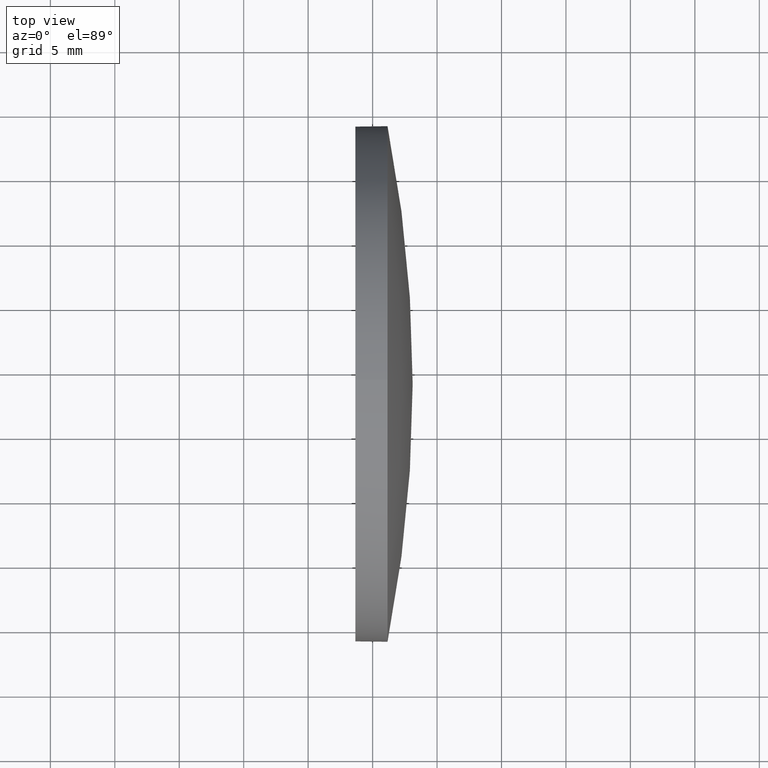
[diagram: clean part render]
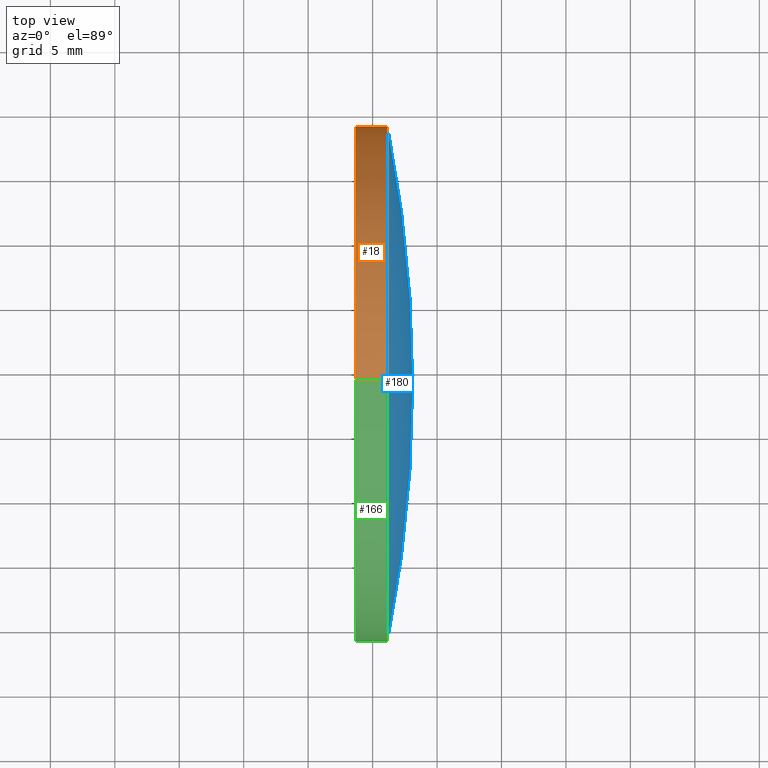
[diagram: same view with three faces highlighted in distinct colors, each labeled with its STEP entity id]
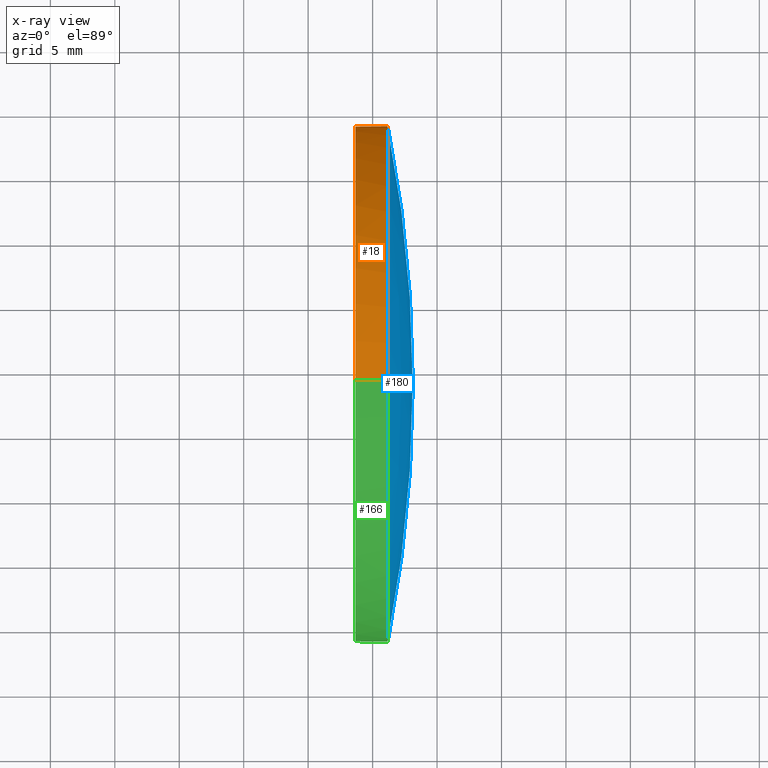
[diagram: x-ray of the same camera — body ghosted, the three highlighted faces saturated]
A machine part, top view with three faces highlighted in distinct colors.
The next image is the same camera in x-ray (body ghosted, the three faces saturated) — at least one of them is partly hidden behind the body in this view.
Their STEP definitions:

[orange] entity #18 — the highlighted cylindrical surface (partial cylindrical patch) has radius 20 mm, axis along (-1, -0, -0).
#2 = CARTESIAN_POINT ( 'NONE',  ( 858.6588966541114600, 303.9353003407363200, 19.99999999999996100 ) ) ;
#3 = EDGE_CURVE ( 'NONE', #119, #85, #176, .T. ) ;
#6 = CARTESIAN_POINT ( 'NONE',  ( 858.6588966541114600, 303.9353003407363200, 0.0000000000000000000 ) ) ;
#13 = AXIS2_PLACEMENT_3D ( 'NONE', #129, #131, #102 ) ;
#18 = ADVANCED_FACE ( 'NONE', ( #26 ), #168, .T. ) ;
#19 = VECTOR ( 'NONE', #137, 1000.000000000000000 ) ;
#21 = DIRECTION ( 'NONE',  ( -1.000000000000000000, -0.0000000000000000000, -0.0000000000000000000 ) ) ;
#23 = EDGE_CURVE ( 'NONE', #38, #67, #159, .T. ) ;
#26 = FACE_OUTER_BOUND ( 'NONE', #93, .T. ) ;
#28 = CIRCLE ( 'NONE', #112, 19.99999999999996100 ) ;
#30 = CARTESIAN_POINT ( 'NONE',  ( 849.1523993343382700, 303.9353003407363200, 0.0000000000000000000 ) ) ;
#38 = VERTEX_POINT ( 'NONE', #146 ) ;
#46 = ORIENTED_EDGE ( 'NONE', *, *, #76, .F. ) ;
#61 = DIRECTION ( 'NONE',  ( -1.000000000000000000, -0.0000000000000000000, -0.0000000000000000000 ) ) ;
#63 = DIRECTION ( 'NONE',  ( -1.000000000000000000, -0.0000000000000000000, -0.0000000000000000000 ) ) ;
#64 = CARTESIAN_POINT ( 'NONE',  ( 849.1523993343382700, 303.9353003407363200, 19.99999999999996100 ) ) ;
#67 = VERTEX_POINT ( 'NONE', #101 ) ;
#69 = LINE ( 'NONE', #64, #19 ) ;
#73 = VERTEX_POINT ( 'NONE', #2 ) ;
#76 = EDGE_CURVE ( 'NONE', #73, #67, #97, .T. ) ;
#80 = ORIENTED_EDGE ( 'NONE', *, *, #92, .F. ) ;
#85 = VERTEX_POINT ( 'NONE', #154 ) ;
#92 = EDGE_CURVE ( 'NONE', #119, #73, #69, .T. ) ;
#93 = EDGE_LOOP ( 'NONE', ( #142, #117, #46, #80, #127 ) ) ;
#96 = EDGE_CURVE ( 'NONE', #85, #38, #28, .T. ) ;
#97 = CIRCLE ( 'NONE', #121, 19.99999999999996100 ) ;
#101 = CARTESIAN_POINT ( 'NONE',  ( 858.6588966541114600, 303.9353003407363200, -19.99999999999996100 ) ) ;
#102 = DIRECTION ( 'NONE',  ( 0.0000000000000000000, 0.0000000000000000000, 1.000000000000000000 ) ) ;
#105 = CARTESIAN_POINT ( 'NONE',  ( 861.1588966541114600, 303.9353003407363200, 19.99999999999996100 ) ) ;
#106 = DIRECTION ( 'NONE',  ( 0.0000000000000000000, 0.0000000000000000000, 1.000000000000000000 ) ) ;
#112 = AXIS2_PLACEMENT_3D ( 'NONE', #132, #21, #164 ) ;
#115 = DIRECTION ( 'NONE',  ( -1.000000000000000000, -0.0000000000000000000, -0.0000000000000000000 ) ) ;
#117 = ORIENTED_EDGE ( 'NONE', *, *, #23, .T. ) ;
#119 = VERTEX_POINT ( 'NONE', #105 ) ;
#121 = AXIS2_PLACEMENT_3D ( 'NONE', #6, #63, #106 ) ;
#127 = ORIENTED_EDGE ( 'NONE', *, *, #3, .T. ) ;
#129 = CARTESIAN_POINT ( 'NONE',  ( 861.1588966541114600, 303.9353003407363200, 0.0000000000000000000 ) ) ;
#131 = DIRECTION ( 'NONE',  ( -1.000000000000000000, -0.0000000000000000000, -0.0000000000000000000 ) ) ;
#132 = CARTESIAN_POINT ( 'NONE',  ( 861.1588966541114600, 303.9353003407363200, 0.0000000000000000000 ) ) ;
#137 = DIRECTION ( 'NONE',  ( -1.000000000000000000, -0.0000000000000000000, -0.0000000000000000000 ) ) ;
#142 = ORIENTED_EDGE ( 'NONE', *, *, #96, .T. ) ;
#145 = DIRECTION ( 'NONE',  ( 0.0000000000000000000, 0.0000000000000000000, 1.000000000000000000 ) ) ;
#146 = CARTESIAN_POINT ( 'NONE',  ( 861.1588966541114600, 303.9353003407363200, -19.99999999999996100 ) ) ;
#149 = VECTOR ( 'NONE', #115, 1000.000000000000000 ) ;
#154 = CARTESIAN_POINT ( 'NONE',  ( 861.1588966541114600, 323.9353003407363200, 2.449293598294688800E-015 ) ) ;
#159 = LINE ( 'NONE', #160, #149 ) ;
#160 = CARTESIAN_POINT ( 'NONE',  ( 849.1523993343382700, 303.9353003407363200, -19.99999999999996100 ) ) ;
#164 = DIRECTION ( 'NONE',  ( 0.0000000000000000000, 0.0000000000000000000, 1.000000000000000000 ) ) ;
#168 = CYLINDRICAL_SURFACE ( 'NONE', #174, 19.99999999999996100 ) ;
#174 = AXIS2_PLACEMENT_3D ( 'NONE', #30, #61, #145 ) ;
#176 = CIRCLE ( 'NONE', #13, 19.99999999999996100 ) ;

[blue] entity #180 — the highlighted spherical surface has radius 103.539 mm.
#1 = EDGE_LOOP ( 'NONE', ( #103, #124, #113, #70 ) ) ;
#3 = EDGE_CURVE ( 'NONE', #119, #85, #176, .T. ) ;
#4 = VERTEX_POINT ( 'NONE', #48 ) ;
#13 = AXIS2_PLACEMENT_3D ( 'NONE', #129, #131, #102 ) ;
#15 = CIRCLE ( 'NONE', #111, 19.99999999999996100 ) ;
#17 = CARTESIAN_POINT ( 'NONE',  ( 759.5697940900090500, 303.9353003407364300, 0.0000000000000000000 ) ) ;
#32 = AXIS2_PLACEMENT_3D ( 'NONE', #90, #56, #36 ) ;
#36 = DIRECTION ( 'NONE',  ( -1.000000000000000000, 0.0000000000000000000, 0.0000000000000000000 ) ) ;
#37 = CIRCLE ( 'NONE', #32, 103.5391025641024800 ) ;
#48 = CARTESIAN_POINT ( 'NONE',  ( 861.1588966541114600, 283.9353003407364300, 0.0000000000000000000 ) ) ;
#53 = CARTESIAN_POINT ( 'NONE',  ( 863.1088966541115000, 303.9353003407364300, 0.0000000000000000000 ) ) ;
#54 = DIRECTION ( 'NONE',  ( 0.0000000000000000000, 0.0000000000000000000, 1.000000000000000000 ) ) ;
#55 = DIRECTION ( 'NONE',  ( 0.0000000000000000000, 0.0000000000000000000, 1.000000000000000000 ) ) ;
#56 = DIRECTION ( 'NONE',  ( 0.0000000000000000000, 0.0000000000000000000, -1.000000000000000000 ) ) ;
#65 = DIRECTION ( 'NONE',  ( 0.0000000000000000000, -1.000000000000000000, 0.0000000000000000000 ) ) ;
#68 = EDGE_CURVE ( 'NONE', #4, #119, #15, .T. ) ;
#70 = ORIENTED_EDGE ( 'NONE', *, *, #68, .F. ) ;
#77 = DIRECTION ( 'NONE',  ( -1.000000000000000000, -0.0000000000000000000, -0.0000000000000000000 ) ) ;
#78 = CARTESIAN_POINT ( 'NONE',  ( 861.1588966541114600, 303.9353003407363200, 0.0000000000000000000 ) ) ;
#82 = SPHERICAL_SURFACE ( 'NONE', #125, 103.5391025641024500 ) ;
#84 = FACE_OUTER_BOUND ( 'NONE', #1, .T. ) ;
#85 = VERTEX_POINT ( 'NONE', #154 ) ;
#90 = CARTESIAN_POINT ( 'NONE',  ( 759.5697940900090500, 303.9353003407364300, 0.0000000000000000000 ) ) ;
#102 = DIRECTION ( 'NONE',  ( 0.0000000000000000000, 0.0000000000000000000, 1.000000000000000000 ) ) ;
#103 = ORIENTED_EDGE ( 'NONE', *, *, #114, .F. ) ;
#105 = CARTESIAN_POINT ( 'NONE',  ( 861.1588966541114600, 303.9353003407363200, 19.99999999999996100 ) ) ;
#111 = AXIS2_PLACEMENT_3D ( 'NONE', #78, #77, #54 ) ;
#113 = ORIENTED_EDGE ( 'NONE', *, *, #3, .F. ) ;
#114 = EDGE_CURVE ( 'NONE', #161, #4, #37, .T. ) ;
#119 = VERTEX_POINT ( 'NONE', #105 ) ;
#120 = CARTESIAN_POINT ( 'NONE',  ( 759.5697940900090500, 303.9353003407364300, 0.0000000000000000000 ) ) ;
#124 = ORIENTED_EDGE ( 'NONE', *, *, #126, .T. ) ;
#125 = AXIS2_PLACEMENT_3D ( 'NONE', #120, #55, #65 ) ;
#126 = EDGE_CURVE ( 'NONE', #161, #85, #158, .T. ) ;
#129 = CARTESIAN_POINT ( 'NONE',  ( 861.1588966541114600, 303.9353003407363200, 0.0000000000000000000 ) ) ;
#131 = DIRECTION ( 'NONE',  ( -1.000000000000000000, -0.0000000000000000000, -0.0000000000000000000 ) ) ;
#135 = DIRECTION ( 'NONE',  ( 0.0000000000000000000, -1.224646799147353200E-016, 1.000000000000000000 ) ) ;
#138 = DIRECTION ( 'NONE',  ( 0.0000000000000000000, -1.000000000000000000, -1.224646799147353200E-016 ) ) ;
#143 = AXIS2_PLACEMENT_3D ( 'NONE', #17, #135, #138 ) ;
#154 = CARTESIAN_POINT ( 'NONE',  ( 861.1588966541114600, 323.9353003407363200, 2.449293598294688800E-015 ) ) ;
#158 = CIRCLE ( 'NONE', #143, 103.5391025641024500 ) ;
#161 = VERTEX_POINT ( 'NONE', #53 ) ;
#176 = CIRCLE ( 'NONE', #13, 19.99999999999996100 ) ;
#180 = ADVANCED_FACE ( 'NONE', ( #84 ), #82, .T. ) ;

[green] entity #166 — the highlighted cylindrical surface (partial cylindrical patch) has radius 20 mm, axis along (-1, -0, -0).
#2 = CARTESIAN_POINT ( 'NONE',  ( 858.6588966541114600, 303.9353003407363200, 19.99999999999996100 ) ) ;
#4 = VERTEX_POINT ( 'NONE', #48 ) ;
#8 = CARTESIAN_POINT ( 'NONE',  ( 849.1523993343382700, 303.9353003407363200, 0.0000000000000000000 ) ) ;
#12 = ORIENTED_EDGE ( 'NONE', *, *, #83, .T. ) ;
#15 = CIRCLE ( 'NONE', #111, 19.99999999999996100 ) ;
#19 = VECTOR ( 'NONE', #137, 1000.000000000000000 ) ;
#23 = EDGE_CURVE ( 'NONE', #38, #67, #159, .T. ) ;
#29 = ORIENTED_EDGE ( 'NONE', *, *, #68, .T. ) ;
#38 = VERTEX_POINT ( 'NONE', #146 ) ;
#44 = ORIENTED_EDGE ( 'NONE', *, *, #92, .T. ) ;
#48 = CARTESIAN_POINT ( 'NONE',  ( 861.1588966541114600, 283.9353003407364300, 0.0000000000000000000 ) ) ;
#50 = AXIS2_PLACEMENT_3D ( 'NONE', #118, #181, #52 ) ;
#52 = DIRECTION ( 'NONE',  ( 0.0000000000000000000, 0.0000000000000000000, 1.000000000000000000 ) ) ;
#54 = DIRECTION ( 'NONE',  ( 0.0000000000000000000, 0.0000000000000000000, 1.000000000000000000 ) ) ;
#58 = ORIENTED_EDGE ( 'NONE', *, *, #104, .F. ) ;
#64 = CARTESIAN_POINT ( 'NONE',  ( 849.1523993343382700, 303.9353003407363200, 19.99999999999996100 ) ) ;
#67 = VERTEX_POINT ( 'NONE', #101 ) ;
#68 = EDGE_CURVE ( 'NONE', #4, #119, #15, .T. ) ;
#69 = LINE ( 'NONE', #64, #19 ) ;
#72 = CIRCLE ( 'NONE', #136, 19.99999999999996100 ) ;
#73 = VERTEX_POINT ( 'NONE', #2 ) ;
#77 = DIRECTION ( 'NONE',  ( -1.000000000000000000, -0.0000000000000000000, -0.0000000000000000000 ) ) ;
#78 = CARTESIAN_POINT ( 'NONE',  ( 861.1588966541114600, 303.9353003407363200, 0.0000000000000000000 ) ) ;
#83 = EDGE_CURVE ( 'NONE', #38, #4, #169, .T. ) ;
#91 = DIRECTION ( 'NONE',  ( -1.000000000000000000, -0.0000000000000000000, -0.0000000000000000000 ) ) ;
#92 = EDGE_CURVE ( 'NONE', #119, #73, #69, .T. ) ;
#100 = AXIS2_PLACEMENT_3D ( 'NONE', #8, #91, #165 ) ;
#101 = CARTESIAN_POINT ( 'NONE',  ( 858.6588966541114600, 303.9353003407363200, -19.99999999999996100 ) ) ;
#104 = EDGE_CURVE ( 'NONE', #67, #73, #72, .T. ) ;
#105 = CARTESIAN_POINT ( 'NONE',  ( 861.1588966541114600, 303.9353003407363200, 19.99999999999996100 ) ) ;
#108 = DIRECTION ( 'NONE',  ( -1.000000000000000000, -0.0000000000000000000, -0.0000000000000000000 ) ) ;
#111 = AXIS2_PLACEMENT_3D ( 'NONE', #78, #77, #54 ) ;
#115 = DIRECTION ( 'NONE',  ( -1.000000000000000000, -0.0000000000000000000, -0.0000000000000000000 ) ) ;
#118 = CARTESIAN_POINT ( 'NONE',  ( 861.1588966541114600, 303.9353003407363200, 0.0000000000000000000 ) ) ;
#119 = VERTEX_POINT ( 'NONE', #105 ) ;
#123 = FACE_OUTER_BOUND ( 'NONE', #157, .T. ) ;
#136 = AXIS2_PLACEMENT_3D ( 'NONE', #150, #108, #179 ) ;
#137 = DIRECTION ( 'NONE',  ( -1.000000000000000000, -0.0000000000000000000, -0.0000000000000000000 ) ) ;
#146 = CARTESIAN_POINT ( 'NONE',  ( 861.1588966541114600, 303.9353003407363200, -19.99999999999996100 ) ) ;
#149 = VECTOR ( 'NONE', #115, 1000.000000000000000 ) ;
#150 = CARTESIAN_POINT ( 'NONE',  ( 858.6588966541114600, 303.9353003407363200, 0.0000000000000000000 ) ) ;
#157 = EDGE_LOOP ( 'NONE', ( #186, #12, #29, #44, #58 ) ) ;
#159 = LINE ( 'NONE', #160, #149 ) ;
#160 = CARTESIAN_POINT ( 'NONE',  ( 849.1523993343382700, 303.9353003407363200, -19.99999999999996100 ) ) ;
#165 = DIRECTION ( 'NONE',  ( 0.0000000000000000000, 0.0000000000000000000, 1.000000000000000000 ) ) ;
#166 = ADVANCED_FACE ( 'NONE', ( #123 ), #175, .T. ) ;
#169 = CIRCLE ( 'NONE', #50, 19.99999999999996100 ) ;
#175 = CYLINDRICAL_SURFACE ( 'NONE', #100, 19.99999999999996100 ) ;
#179 = DIRECTION ( 'NONE',  ( 0.0000000000000000000, 0.0000000000000000000, 1.000000000000000000 ) ) ;
#181 = DIRECTION ( 'NONE',  ( -1.000000000000000000, -0.0000000000000000000, -0.0000000000000000000 ) ) ;
#186 = ORIENTED_EDGE ( 'NONE', *, *, #23, .F. ) ;